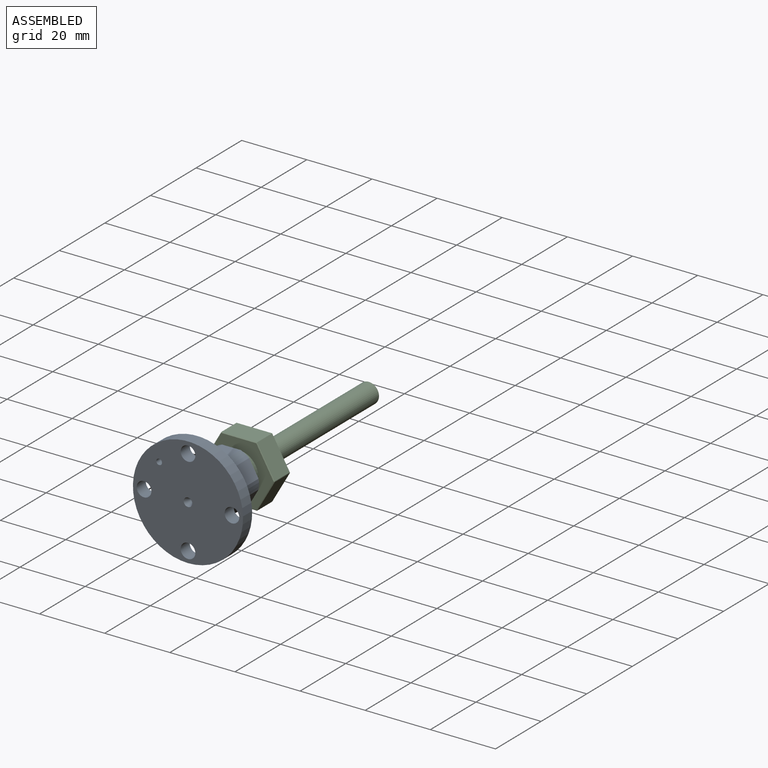
[diagram: assembled view]
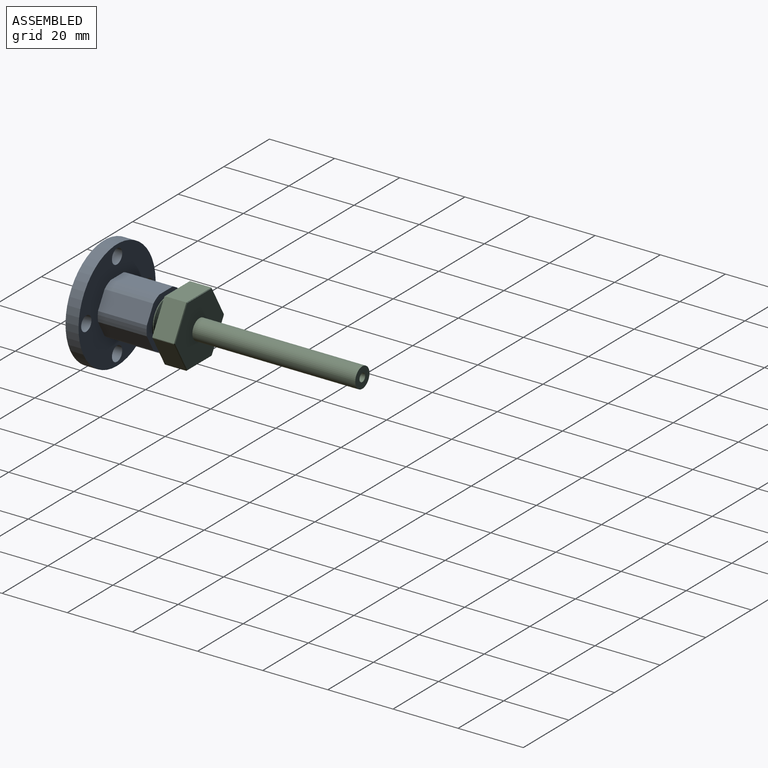
[diagram: assembled view, second angle]
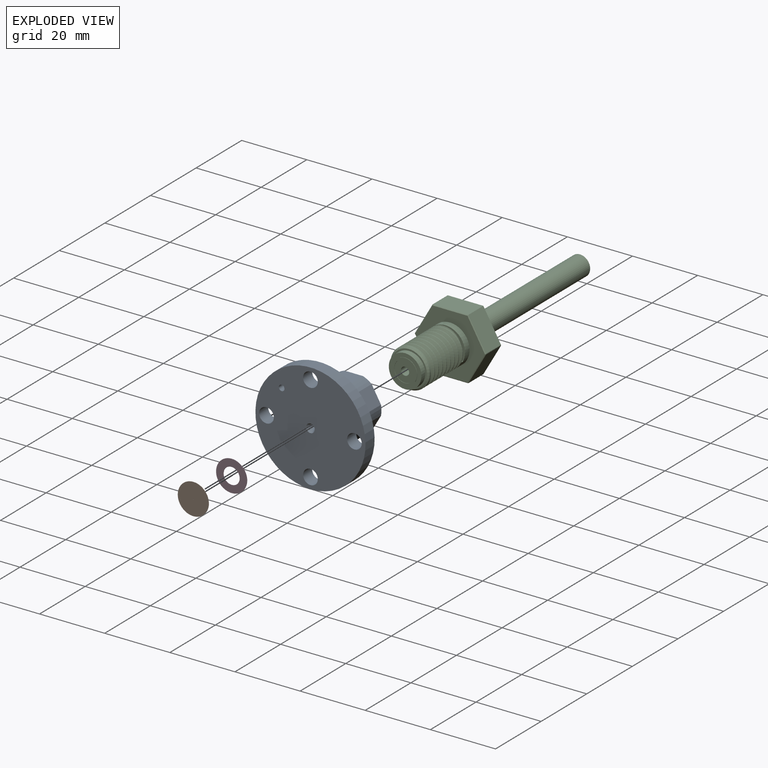
[diagram: exploded view]
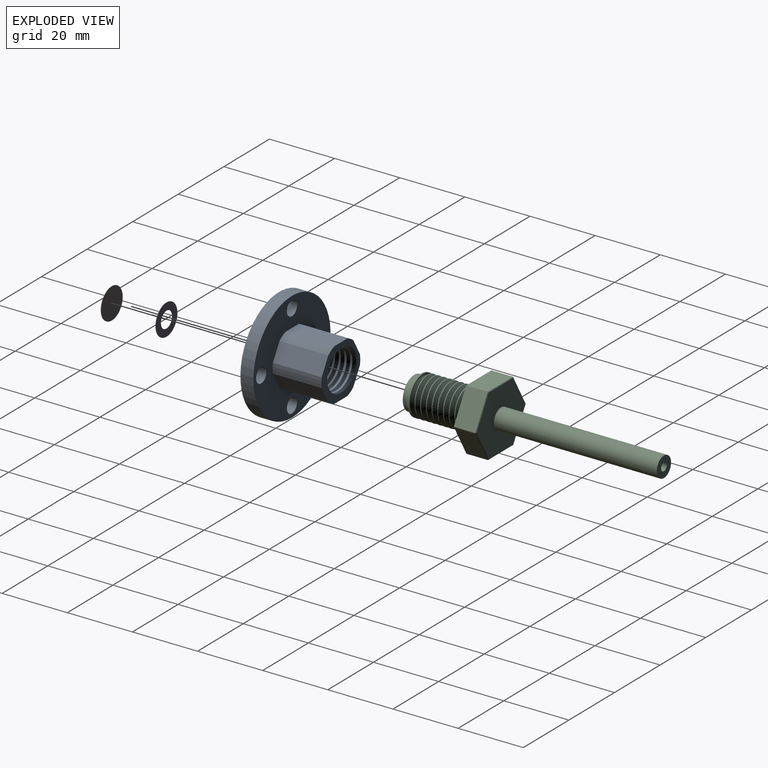
[diagram: exploded view, second angle]
ASSEMBLY  parts=4 mates=3
PART A: 39 faces, bbox 34.3x20.5x34.3 mm
  f0: cylinder r=2.25mm len=4.5mm, axis (0,-1,0), area 56.5mm2, adj f28,f30
  f1: cylinder r=2.25mm len=4.5mm, axis (0,-1,0), area 56.5mm2, adj f28,f30
  f2: cylinder r=2.25mm len=4.5mm, axis (0,-1,0), area 56.5mm2, adj f28,f30
  f3: cylinder r=8.5mm len=15mm, axis (0,-1,0), area 45.6mm2, adj f4,f27,f30,f35
  f4: plane 15x4.98mm, normal (-0.87,0,0.5), area 86.2mm2, adj f3,f5,f27,f30
  f5: cylinder r=8.5mm len=15mm, axis (0,-1,0), area 45.6mm2, adj f4,f6,f27,f30
  f6: plane 15x4.98mm, normal (-0.87,0,-0.5), area 86.2mm2, adj f5,f7,f27,f30
  f7: cylinder r=8.5mm len=15mm, axis (0,-1,0), area 45.6mm2, adj f6,f8,f27,f30
  f8: plane 15x5.74mm, normal (0,0,-1), area 86.2mm2, adj f7,f9,f27,f30
  f9: cylinder r=8.5mm len=15mm, axis (0,-1,0), area 45.6mm2, adj f8,f10,f27,f30
  f10: plane 15x4.98mm, normal (0.87,0,-0.5), area 86.2mm2, adj f9,f11,f27,f30
  f11: cylinder r=8.5mm len=15mm, axis (0,-1,0), area 45.6mm2, adj f10,f12,f27,f30
  f12: plane 15x4.98mm, normal (0.87,0,0.5), area 86.2mm2, adj f11,f13,f27,f30
  f13: cylinder r=8.5mm len=15mm, axis (0,-1,0), area 45.6mm2, adj f12,f27,f30,f35
  f14: cylinder r=6mm len=12mm, axis (0,1,0), area 46.8mm2, adj f15,f24,f32,f33,f34
  f15: cylinder r=6mm len=12mm, axis (0,1,0), area 24.1mm2, adj f14,f16,f33,f34
  f16: cylinder r=6mm len=12mm, axis (0,1,0), area 24.1mm2, adj f15,f17,f33,f34
  f17: cylinder r=6mm len=12mm, axis (0,1,0), area 24.1mm2, adj f16,f18,f33,f34
  f18: cylinder r=6mm len=12mm, axis (0,1,0), area 24.1mm2, adj f17,f19,f33,f34
  f19: cylinder r=6mm len=12mm, axis (0,1,0), area 24mm2, adj f18,f20,f33,f34
  f20: cylinder r=6mm len=12mm, axis (0,1,0), area 24.1mm2, adj f19,f21,f33,f34
  f21: cylinder r=6mm len=12mm, axis (0,1,0), area 24.1mm2, adj f20,f22,f33,f34
  f22: cylinder r=6mm len=12mm, axis (0,1,0), area 24.1mm2, adj f21,f23,f33,f34
  f23: cylinder r=6mm len=12mm, axis (0,1,0), area 7.8mm2, adj f22,f27,f33,f34
  f24: plane 12x12mm, normal (0,1,0), area 42.2mm2, adj f14,f25
  f25: cylinder r=4.75mm len=9.5mm, axis (0,1,0), area 6mm2, adj f24,f26
  f26: plane 9.5x9.5mm, normal (0,1,0), area 70.7mm2, adj f25,f36
  f27: plane 17.54x16.54mm, normal (0,1,0), area 90.2mm2, adj f3,f4,f5,f6,f7,f8,f9,f10
  f28: plane 33.8x33.8mm, normal (0,-1,0), area 825.8mm2, adj f0,f1,f2,f29,f31,f36,f38
  f29: cylinder r=16.9mm len=33.8mm, axis (0,-1,0), area 424.7mm2, adj f28,f30
  f30: plane 33.8x33.8mm, normal (0,1,0), area 618.2mm2, adj f0,f1,f2,f3,f4,f5,f6,f7
  f31: cylinder r=2.25mm len=4.5mm, axis (0,-1,0), area 56.5mm2, adj f28,f30
  f32: plane 1.11x0.68mm, normal (0.71,0,0.71), area 0.5mm2, adj f14,f33,f34
  f33: bspline ~17.38x15.8mm, area 412mm2, adj f14,f15,f16,f17,f18,f19,f20,f21
  f34: bspline ~16.79x15.8mm, area 398.1mm2, adj f14,f15,f16,f17,f18,f19,f20,f21
  f35: plane 15x5.74mm, normal (0,0,1), area 86.2mm2, adj f3,f13,f27,f30
  f36: cone r=0.25mm half-angle=25deg, axis (0,-1,0), area 12.5mm2, adj f26,f28
  f37: cone r=0mm half-angle=59deg, axis (0,-1,0), area 2.8mm2, adj f38
  f38: cylinder r=0.88mm len=2.25mm, axis (0,-1,0), area 12.4mm2, adj f28,f37
PART B: 4 faces, bbox 9.5x0.1x9.5 mm
  f0: cylinder r=4.75mm len=9.5mm, axis (0,1,0), area 3mm2, adj f1,f2
  f1: plane 9.5x9.5mm, normal (0,-1,0), area 70.9mm2, adj f0,f3
  f2: plane 9.5x9.5mm, normal (0,1,0), area 70.9mm2, adj f0,f3
  f3: cylinder r=0.1mm len=0.2mm, axis (0,-1,0), area 0.1mm2, adj f1,f2
PART C: 48 faces, bbox 22.8x77.7x19.9 mm
  f0: plane 10x10mm, normal (0,-1,0), area 34.4mm2, adj f44,f45
  f1: plane 6.5x6.5mm, normal (0,-1,0), area 28.3mm2, adj f41,f46
  f2: cylinder r=6mm len=12mm, axis (0,1,0), area 36.7mm2, adj f9,f11,f12,f13,f39,f40
  f3: cylinder r=6mm len=12mm, axis (0,1,0), area 93.9mm2, adj f4,f10,f11,f13,f14,f22
  f4: cylinder r=6mm len=12mm, axis (0,1,0), area 9.4mm2, adj f3,f5,f11,f13
  f5: cylinder r=6mm len=12mm, axis (0,1,0), area 9.4mm2, adj f4,f6,f11,f13
  f6: cylinder r=6mm len=12mm, axis (0,1,0), area 9.4mm2, adj f5,f7,f11,f13
  f7: cylinder r=6mm len=12mm, axis (0,1,0), area 9.4mm2, adj f6,f8,f11,f13
  f8: cylinder r=6mm len=12mm, axis (0,1,0), area 9.4mm2, adj f7,f9,f11,f13
  f9: cylinder r=6mm len=12mm, axis (0,1,0), area 9.4mm2, adj f2,f8,f11,f13
  f10: plane 1.17x0.75mm, normal (0.43,0,0.9), area 0.5mm2, adj f3,f13,f14
  f11: bspline ~15.92x13.86mm, area 421.4mm2, adj f2,f3,f4,f5,f6,f7,f8,f9
  f12: plane 1.3x0.75mm, normal (0,0,1), area 0.5mm2, adj f2,f11,f39
  f13: bspline ~15.92x13.86mm, area 421.2mm2, adj f2,f3,f4,f5,f6,f7,f8,f9
  f14: plane 10.64x9.47mm, normal (0,-1,0), area 9.7mm2, adj f3,f10,f11
  f15: plane 9.48x6.6mm, normal (-0.87,0,0.5), area 72.3mm2, adj f16,f20,f23,f31
  f16: plane 10.95x6.6mm, normal (0,0,1), area 72.3mm2, adj f15,f17,f25,f29
  f17: plane 9.38x6.6mm, normal (0.87,0,0.5), area 71.5mm2, adj f16,f27,f32,f33
  f18: plane 9.38x6.6mm, normal (0.87,0,-0.5), area 71.5mm2, adj f19,f28,f33,f37
  f19: plane 10.95x6.6mm, normal (0,0,-1), area 72.3mm2, adj f18,f20,f26,f36
  f20: plane 9.48x6.6mm, normal (-0.87,0,-0.5), area 72.3mm2, adj f15,f19,f24,f34
  f21: plane 21.44x18.57mm, normal (0,1,0), area 267.8mm2, adj f23,f24,f25,f26,f27,f28,f42
  f22: plane 21.44x18.57mm, normal (0,-1,0), area 185.4mm2, adj f3,f29,f31,f32,f34,f36,f37
  f23: plane 9.48x5.59mm, normal (-0.61,0.71,0.35), area 3.1mm2, adj f15,f21,f24,f25
  f24: plane 9.48x5.59mm, normal (-0.61,0.71,-0.35), area 3.1mm2, adj f20,f21,f23,f26
  f25: plane 10.95x0.2mm, normal (0,0.71,0.71), area 3.1mm2, adj f16,f21,f23,f27
  f26: plane 10.95x0.2mm, normal (0,0.71,-0.71), area 3.1mm2, adj f19,f21,f24,f28
  f27: plane 9.48x5.53mm, normal (0.61,0.71,0.35), area 3mm2, adj f17,f21,f25,f30
  f28: plane 9.48x5.53mm, normal (0.61,0.71,-0.35), area 3mm2, adj f18,f21,f26,f30
  f29: plane 10.95x0.2mm, normal (0,-0.71,0.71), area 3.1mm2, adj f16,f22,f31,f32
  f30: plane 0.2x0.2mm, normal (0.76,0.65,0), area 0mm2, adj f27,f28,f33
  f31: plane 9.48x5.59mm, normal (-0.61,-0.71,0.35), area 3.1mm2, adj f15,f22,f29,f34
  f32: plane 9.48x5.53mm, normal (0.61,-0.71,0.35), area 3mm2, adj f17,f22,f29,f35
  f33: plane 6.6x0.2mm, normal (1,0,0), area 1.3mm2, adj f17,f18,f30,f35
  f34: plane 9.48x5.59mm, normal (-0.61,-0.71,-0.35), area 3.1mm2, adj f20,f22,f31,f36
  f35: plane 0.2x0.2mm, normal (0.76,-0.65,0), area 0mm2, adj f32,f33,f37
  f36: plane 10.95x0.2mm, normal (0,-0.71,-0.71), area 3.1mm2, adj f19,f22,f34,f37
  f37: plane 9.48x5.53mm, normal (0.61,-0.71,-0.35), area 3mm2, adj f18,f22,f35,f36
  f38: plane 11x11mm, normal (0,-1,0), area 16.5mm2, adj f40,f44
  f39: plane 12.33x6.93mm, normal (0,1,0), area 9.7mm2, adj f2,f12,f13
  f40: cone r=5.5mm half-angle=45deg, axis (0,1,0), area 25.5mm2, adj f2,f38
  f41: cylinder r=1.25mm len=76.7mm, axis (0,-1,0), area 602.4mm2, adj f1,f43
  f42: cylinder r=3.12mm len=50mm, axis (0,-1,0), area 981.7mm2, adj f21,f43
  f43: plane 6.25x6.25mm, normal (0,1,0), area 25.8mm2, adj f41,f42
  f44: cylinder r=5mm len=10mm, axis (0,1,0), area 53.4mm2, adj f0,f38
  f45: cylinder r=3.75mm len=7.5mm, axis (0,1,0), area 2.4mm2, adj f0,f47
  f46: cylinder r=3.25mm len=6.5mm, axis (0,1,0), area 2mm2, adj f1,f47
  f47: plane 7.5x7.5mm, normal (0,-1,0), area 11mm2, adj f45,f46
PART D: 4 faces, bbox 9.5x0.1x9.5 mm
  f0: cylinder r=2.5mm len=5mm, axis (0,1,0), area 1.6mm2, adj f2,f3
  f1: cylinder r=4.75mm len=9.5mm, axis (0,1,0), area 3mm2, adj f2,f3
  f2: plane 9.5x9.5mm, normal (0,-1,0), area 51.2mm2, adj f0,f1
  f3: plane 9.5x9.5mm, normal (0,1,0), area 51.2mm2, adj f0,f1
PLACE A t=(-5.04,3.74,5.43)mm
PLACE B rot(axis=(1,0,0),180deg) t=(-5.04,6.04,5.43)mm
PLACE C t=(-5.04,24.04,5.43)mm
PLACE D rot(axis=(1,0,0),180deg) t=(-5.04,6.14,5.43)mm
MATE planar C.f44 <-> D.f1  axis (0,-1,0) through (-5.04,6.24,5.43)mm
MATE planar B.f0 <-> A.f25  axis (0,-1,0) through (-5.04,6.04,5.43)mm
MATE planar D.f0 <-> B.f0  axis (0,-1,0) through (-5.04,6.14,5.43)mm
